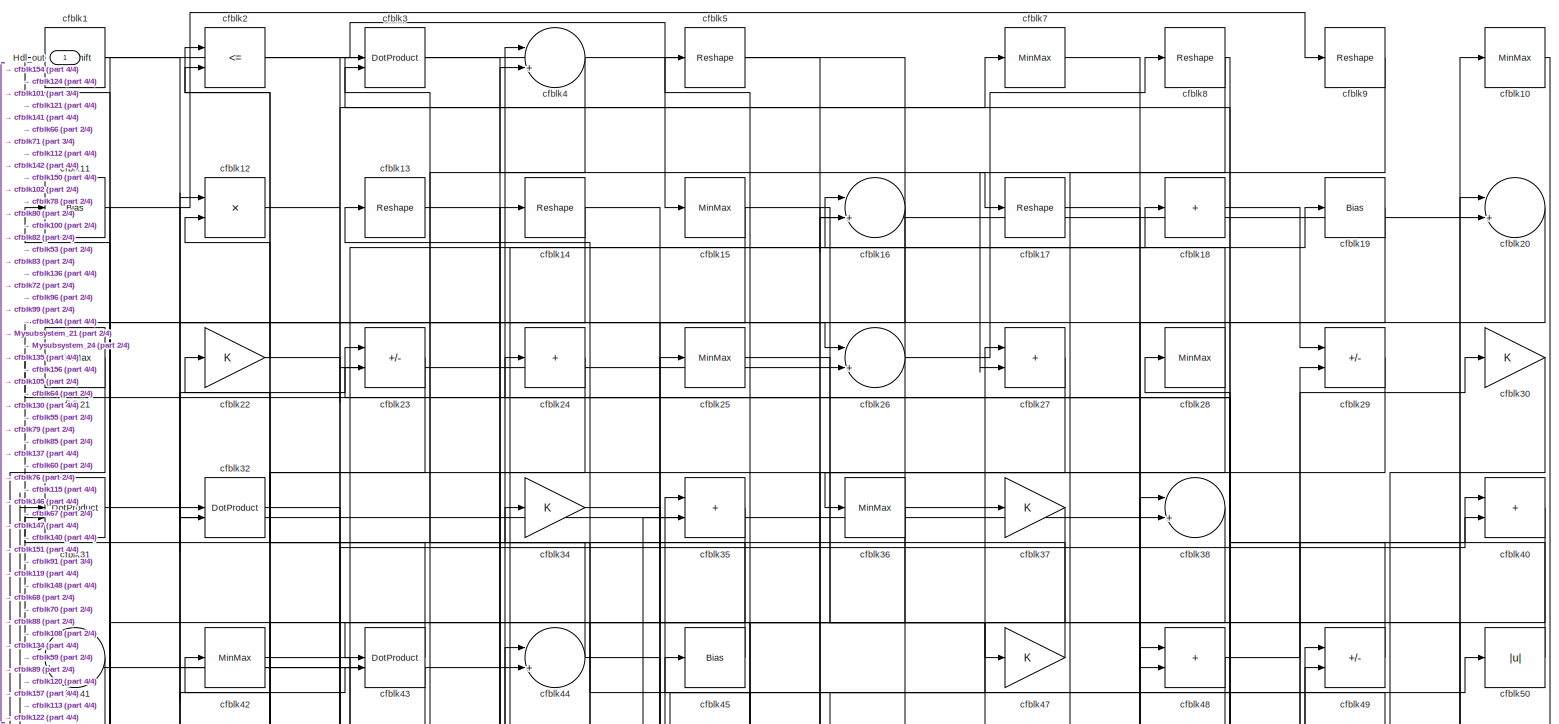
[diagram: root canvas - part 1/4, full width, top band]
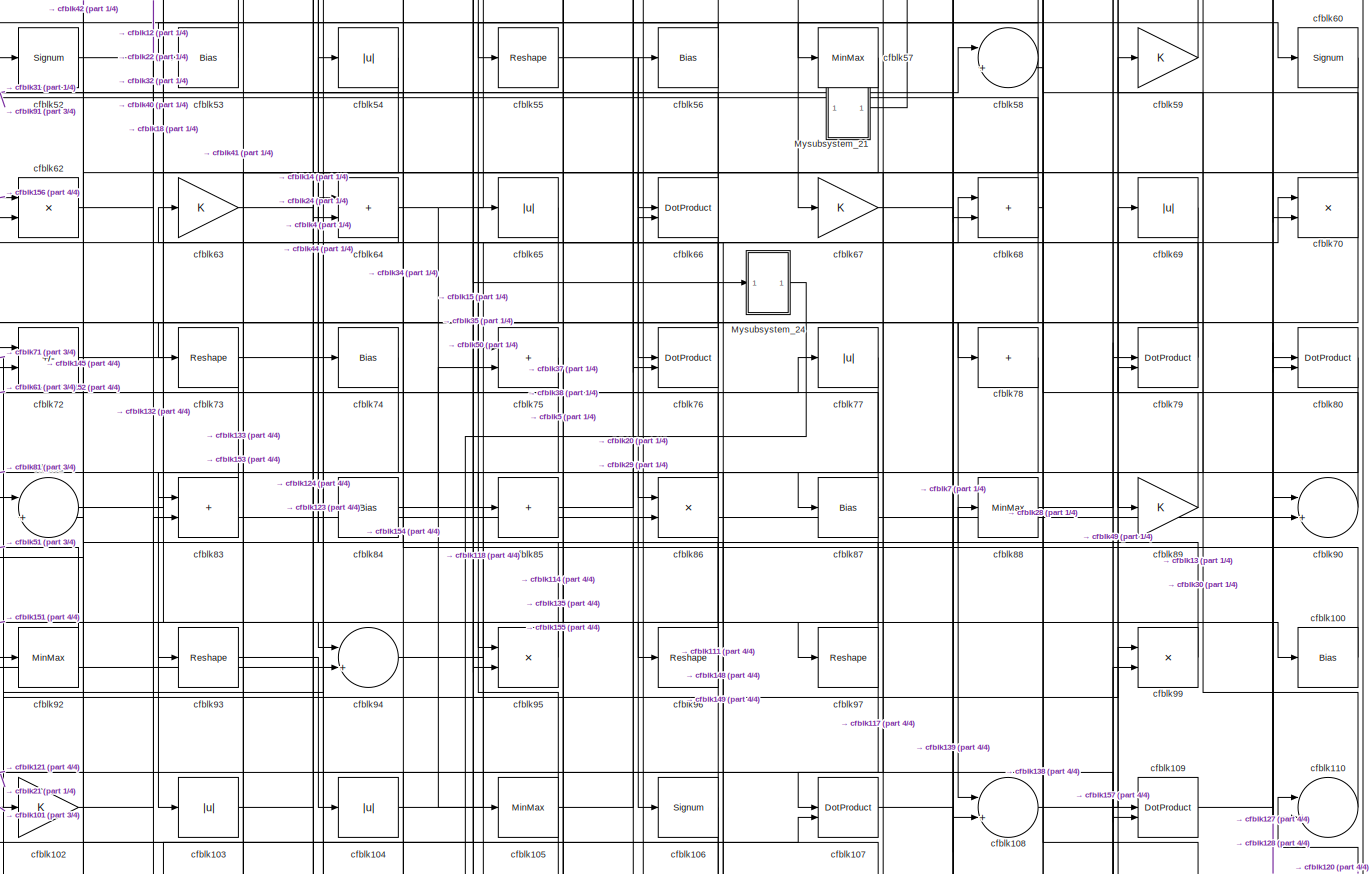
[diagram: root canvas - part 2/4, full width, middle band]
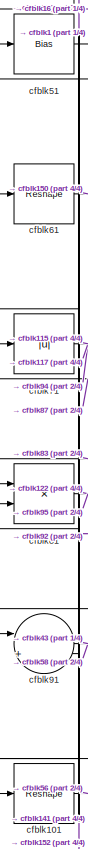
[diagram: root canvas - part 3/4, middle left region]
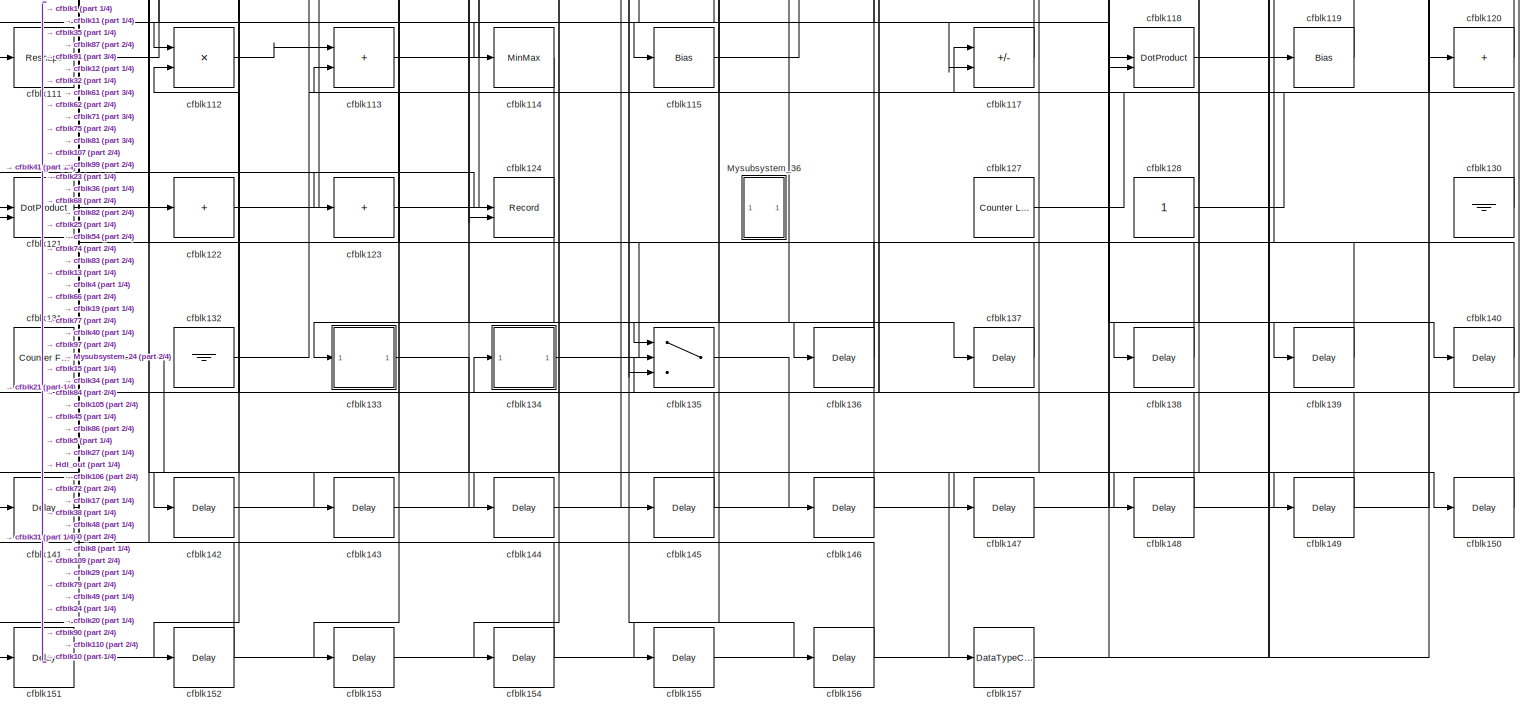
[diagram: root canvas - part 4/4, full width, bottom band]
MODEL slx_01c3ef3bdf71
KIND model
CONFIG AbsTol = auto
CONFIG EnableMultiTasking = off
CONFIG FixedStep = auto
CONFIG MaxStep = auto
CONFIG MinStep = auto
CONFIG RelTol = 1e-3
CONFIG SampleTimeConstraint = Unconstrained
CONFIG SolverName = VariableStepAuto
CONFIG StartTime = 0.0
CONFIG StopTime = 10.0
BLOCK [Outport] Hdl_out
  OutDataTypeStr = uint8
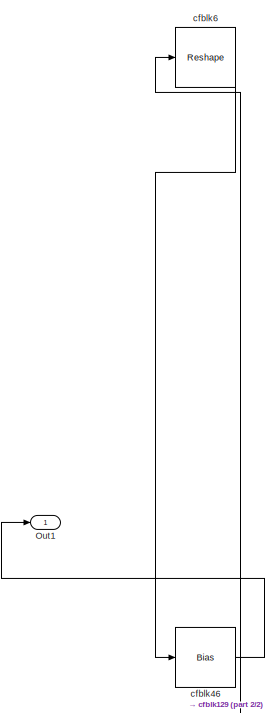
[diagram: Mysubsystem_21 - part 1/2, top left region]
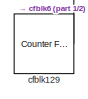
[diagram: Mysubsystem_21 - part 2/2, bottom right region]
BLOCK [SubSystem] Mysubsystem_21
  RTWFcnName = Mysubsystem_21
  RTWFcnNameOpts = User specified
  RTWFileNameOpts = Use function name
  RTWSystemCode = Reusable function
  TreatAsAtomicUnit = on
BLOCK [Outport] Mysubsystem_21/Out1
BLOCK [Reference] Mysubsystem_21/cfblk129  REF=hdlsllib/Sources/Counter
Free-Running
  SourceBlock = hdlsllib/Sources/Counter\nFree-Running
  SourceType = Counter Free-Running
BLOCK [Bias] Mysubsystem_21/cfblk46
  Bias = 0.0
  SaturateOnIntegerOverflow = off
BLOCK [Reshape] Mysubsystem_21/cfblk6
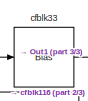
[diagram: Mysubsystem_24 - part 1/3, top left region]
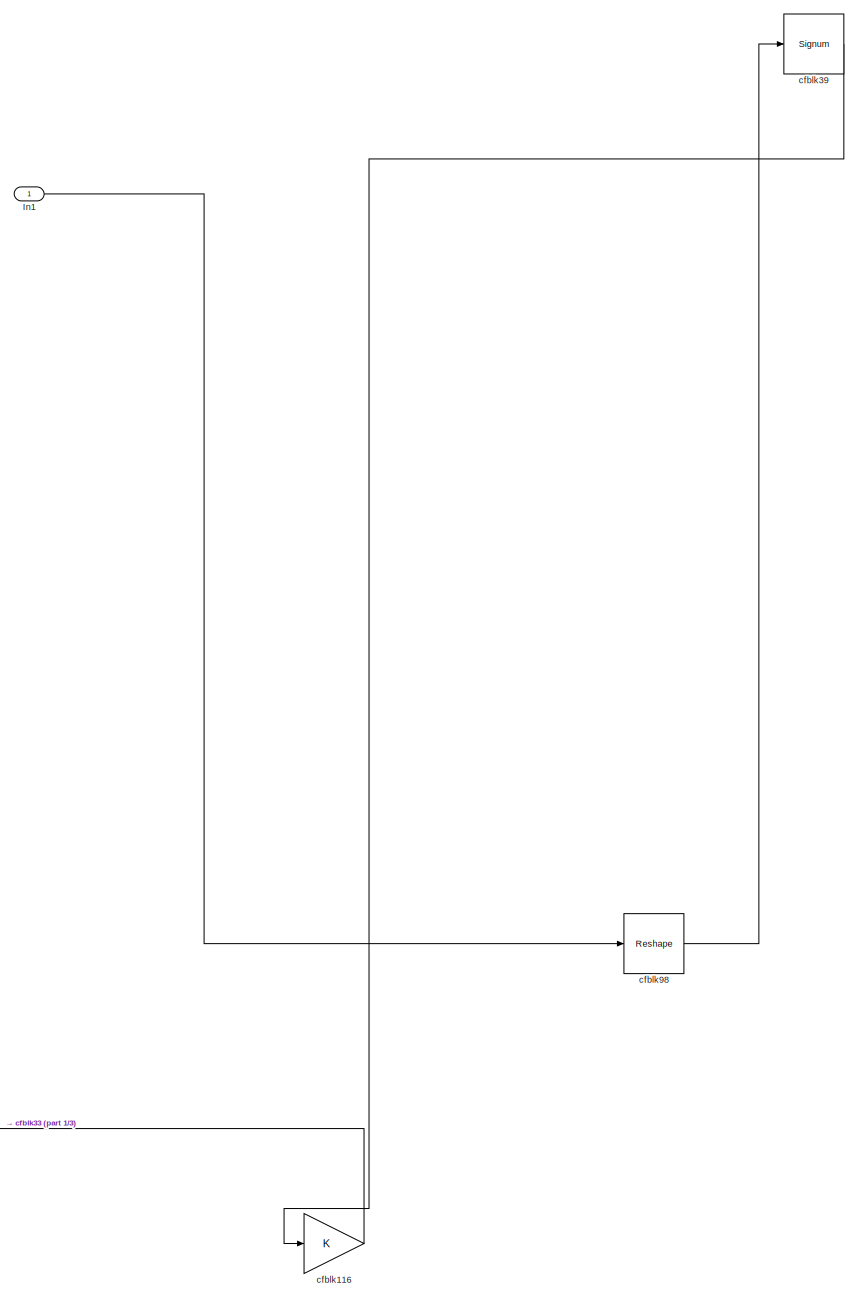
[diagram: Mysubsystem_24 - part 2/3, most of the canvas]
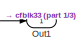
[diagram: Mysubsystem_24 - part 3/3, bottom center region]
BLOCK [SubSystem] Mysubsystem_24
  RTWFcnName = Mysubsystem_24
  RTWFcnNameOpts = User specified
  RTWFileNameOpts = Use function name
  RTWSystemCode = Reusable function
  TreatAsAtomicUnit = on
BLOCK [Inport] Mysubsystem_24/In1
BLOCK [Outport] Mysubsystem_24/Out1
BLOCK [Gain] Mysubsystem_24/cfblk116
BLOCK [Bias] Mysubsystem_24/cfblk33
  Bias = 0.0
  SaturateOnIntegerOverflow = off
BLOCK [Signum] Mysubsystem_24/cfblk39
BLOCK [Reshape] Mysubsystem_24/cfblk98
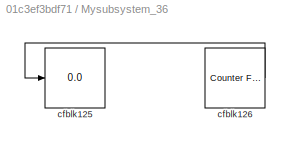
BLOCK [SubSystem] Mysubsystem_36
  RTWFcnName = Mysubsystem_36
  RTWFcnNameOpts = User specified
  RTWFileNameOpts = Use function name
  RTWSystemCode = Reusable function
  TreatAsAtomicUnit = on
BLOCK [Display] Mysubsystem_36/cfblk125
  Decimation = 1
BLOCK [Reference] Mysubsystem_36/cfblk126  REF=hdlsllib/Sources/Counter
Free-Running
  SourceBlock = hdlsllib/Sources/Counter\nFree-Running
  SourceType = Counter Free-Running
BLOCK [Reference] cfblk1  REF=hdlsllib/Logic and Bit
Operations/Bit Shift
  SourceBlock = hdlsllib/Logic and Bit\nOperations/Bit Shift
  SourceType = Bit Shift
BLOCK [MinMax] cfblk10
  OutDataTypeStr = uint8
BLOCK [Bias] cfblk100
  Bias = 0.0
  SaturateOnIntegerOverflow = off
BLOCK [Reshape] cfblk101
BLOCK [Gain] cfblk102
  OutDataTypeStr = uint8
BLOCK [Abs] cfblk103
  OutDataTypeStr = uint8
  SaturateOnIntegerOverflow = off
BLOCK [Abs] cfblk104
  OutDataTypeStr = uint8
  SaturateOnIntegerOverflow = off
BLOCK [MinMax] cfblk105
  OutDataTypeStr = uint8
BLOCK [Signum] cfblk106
BLOCK [DotProduct] cfblk107
  OutDataTypeStr = uint8
BLOCK [Sum] cfblk108
  Inputs = |++
  OutDataTypeStr = uint8
BLOCK [DotProduct] cfblk109
  OutDataTypeStr = uint8
BLOCK [Bias] cfblk11
  Bias = 0.0
  SaturateOnIntegerOverflow = off
BLOCK [Sum] cfblk110
  Inputs = |++
  OutDataTypeStr = uint8
BLOCK [Reshape] cfblk111
BLOCK [Product] cfblk112
  Inputs = */
  OutDataTypeStr = uint8
  RndMeth = Zero
  SaturateOnIntegerOverflow = on
BLOCK [Sum] cfblk113
  IconShape = rectangular
  OutDataTypeStr = uint8
BLOCK [MinMax] cfblk114
  OutDataTypeStr = uint8
BLOCK [Bias] cfblk115
  Bias = 0.0
  SaturateOnIntegerOverflow = off
BLOCK [Sum] cfblk117
  IconShape = rectangular
  Inputs = +-
  OutDataTypeStr = uint8
BLOCK [DotProduct] cfblk118
  OutDataTypeStr = uint8
BLOCK [Bias] cfblk119
  Bias = 0.0
  SaturateOnIntegerOverflow = off
BLOCK [Product] cfblk12
  Inputs = */
  OutDataTypeStr = uint8
  RndMeth = Zero
  SaturateOnIntegerOverflow = on
BLOCK [Sum] cfblk120
  IconShape = rectangular
  Inputs = +
  OutDataTypeStr = uint8
BLOCK [DotProduct] cfblk121
  OutDataTypeStr = uint8
BLOCK [Sum] cfblk122
  IconShape = rectangular
  Inputs = +
  OutDataTypeStr = uint8
BLOCK [Sum] cfblk123
  IconShape = rectangular
  Inputs = +
  OutDataTypeStr = uint8
BLOCK [Record] cfblk124
  CompatibilityTag = XY
  FileSettingsInternal = {"entries":[{"content":{"excelSettings":{"content":{},"type":"Streamout.ExcelSettings"}},"type":"Streamout.FileSettingStorage","uuid":""}],"packageUris":["http:\/\/schema.mathworks.com\/mf0\/streamout_blocks\/R2020a"],"version":"1.0"}
  Layout = [1 1]
  SignalsInternal = {"entries":[{"content":{"signals":[{"content":{"blockPath":[],"dimensions":[1],"domain":"","lineColor":"#a2142f","plots":[1],"port":1,"signalID":50528,"signalName":"cfblk41"},"type":"RecordBlkView.Signal","uuid":""},{"content":{"blockPath":[],"dimensions":[1],"domain":"","lineColor":"#139fff","plots":[1],"port":2,"signalID":50531,"signalName":"cfblk66"},"type":"RecordBlkView.Signal","uuid":""}]},"...<+142ch>
  VisualizationBindings = {"xyplotplugin":{"info":[{"series":[{"bindingParametersList":[{"parameter":"X-Axis","signalID":50528,"signalName":"cfblk41"},{"parameter":"Y-Axis","signalID":50531,"signalName":"cfblk66"}],"seriesID":60734}],"subplotID":1}]}}
  st = -1
BLOCK [Reference] cfblk127  REF=hdlsllib/Sources/Counter
Limited
  SourceBlock = hdlsllib/Sources/Counter\nLimited
  SourceType = Counter Limited
BLOCK [Constant] cfblk128
  OutDataTypeStr = uint8
  SampleTime = -1
BLOCK [Reshape] cfblk13
BLOCK [Ground] cfblk130
BLOCK [Reference] cfblk131  REF=hdlsllib/Sources/Counter
Free-Running
  SourceBlock = hdlsllib/Sources/Counter\nFree-Running
  SourceType = Counter Free-Running
BLOCK [Ground] cfblk132
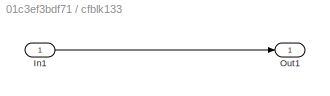
BLOCK [SubSystem] cfblk133
  LibrarySourceBlock = hdlsllib/Ports &\nSubsystems/Subsystem
BLOCK [Inport] cfblk133/In1
BLOCK [Outport] cfblk133/Out1
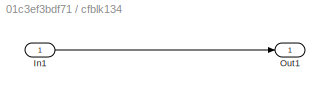
BLOCK [SubSystem] cfblk134
  LibrarySourceBlock = hdlsllib/Ports &\nSubsystems/Subsystem
BLOCK [Inport] cfblk134/In1
BLOCK [Outport] cfblk134/Out1
BLOCK [Switch] cfblk135
  InputSameDT = off
  OutDataTypeStr = uint8
  SaturateOnIntegerOverflow = off
BLOCK [Delay] cfblk136
  InputPortMap = u0
  SampleTime = 1
BLOCK [Delay] cfblk137
  InputPortMap = u0
  SampleTime = 1
BLOCK [Delay] cfblk138
  InputPortMap = u0
  SampleTime = 1
BLOCK [Delay] cfblk139
  InputPortMap = u0
  SampleTime = 1
BLOCK [Reshape] cfblk14
BLOCK [Delay] cfblk140
  InputPortMap = u0
  SampleTime = 1
BLOCK [Delay] cfblk141
  InputPortMap = u0
  SampleTime = 1
BLOCK [Delay] cfblk142
  InputPortMap = u0
  SampleTime = 1
BLOCK [Delay] cfblk143
  InputPortMap = u0
  SampleTime = 1
BLOCK [Delay] cfblk144
  InputPortMap = u0
  SampleTime = 1
BLOCK [Delay] cfblk145
  InputPortMap = u0
  SampleTime = 1
BLOCK [Delay] cfblk146
  InputPortMap = u0
  SampleTime = 1
BLOCK [Delay] cfblk147
  InputPortMap = u0
  SampleTime = 1
BLOCK [Delay] cfblk148
  InputPortMap = u0
  SampleTime = 1
BLOCK [Delay] cfblk149
  InputPortMap = u0
  SampleTime = 1
BLOCK [MinMax] cfblk15
  OutDataTypeStr = uint8
BLOCK [Delay] cfblk150
  InputPortMap = u0
  SampleTime = 1
BLOCK [Delay] cfblk151
  InputPortMap = u0
  SampleTime = 1
BLOCK [Delay] cfblk152
  InputPortMap = u0
  SampleTime = 1
BLOCK [Delay] cfblk153
  InputPortMap = u0
  SampleTime = 1
BLOCK [Delay] cfblk154
  InputPortMap = u0
  SampleTime = 1
BLOCK [Delay] cfblk155
  InputPortMap = u0
  SampleTime = 1
BLOCK [Delay] cfblk156
  InputPortMap = u0
  SampleTime = 1
BLOCK [DataTypeConversion] cfblk157
  OutDataTypeStr = uint8
  RndMeth = Floor
  SaturateOnIntegerOverflow = off
BLOCK [Sum] cfblk16
  Inputs = |++
  OutDataTypeStr = uint8
BLOCK [Reshape] cfblk17
BLOCK [Sum] cfblk18
  IconShape = rectangular
  Inputs = +
  OutDataTypeStr = uint8
BLOCK [Bias] cfblk19
  Bias = 0.0
  SaturateOnIntegerOverflow = off
BLOCK [RelationalOperator] cfblk2
  InputSameDT = off
  Operator = <=
  OutDataTypeStr = boolean
BLOCK [Sum] cfblk20
  Inputs = |++
  OutDataTypeStr = uint8
BLOCK [MinMax] cfblk21
  OutDataTypeStr = uint8
BLOCK [Gain] cfblk22
  OutDataTypeStr = uint8
BLOCK [Sum] cfblk23
  IconShape = rectangular
  Inputs = +-
  OutDataTypeStr = uint8
BLOCK [Sum] cfblk24
  IconShape = rectangular
  Inputs = +
  OutDataTypeStr = uint8
BLOCK [MinMax] cfblk25
  OutDataTypeStr = uint8
BLOCK [Sum] cfblk26
  Inputs = |++
  OutDataTypeStr = uint8
BLOCK [Sum] cfblk27
  IconShape = rectangular
  OutDataTypeStr = uint8
BLOCK [MinMax] cfblk28
  OutDataTypeStr = uint8
BLOCK [Sum] cfblk29
  IconShape = rectangular
  Inputs = +-
  OutDataTypeStr = uint8
BLOCK [DotProduct] cfblk3
  OutDataTypeStr = uint8
BLOCK [Gain] cfblk30
  OutDataTypeStr = uint8
BLOCK [DotProduct] cfblk31
  OutDataTypeStr = uint8
BLOCK [DotProduct] cfblk32
  OutDataTypeStr = uint8
BLOCK [Gain] cfblk34
  OutDataTypeStr = uint8
BLOCK [Sum] cfblk35
  IconShape = rectangular
  OutDataTypeStr = uint8
BLOCK [MinMax] cfblk36
  OutDataTypeStr = uint8
BLOCK [Gain] cfblk37
  OutDataTypeStr = uint8
BLOCK [Sum] cfblk38
  Inputs = |++
  OutDataTypeStr = uint8
BLOCK [Sum] cfblk4
  Inputs = |++
  OutDataTypeStr = uint8
BLOCK [Sum] cfblk40
  IconShape = rectangular
  OutDataTypeStr = uint8
BLOCK [Sum] cfblk41
  Inputs = |++
  OutDataTypeStr = uint8
BLOCK [MinMax] cfblk42
  OutDataTypeStr = uint8
BLOCK [DotProduct] cfblk43
  OutDataTypeStr = uint8
BLOCK [Sum] cfblk44
  Inputs = |++
  OutDataTypeStr = uint8
BLOCK [Bias] cfblk45
  Bias = 0.0
  SaturateOnIntegerOverflow = off
BLOCK [Gain] cfblk47
  OutDataTypeStr = uint8
BLOCK [Sum] cfblk48
  IconShape = rectangular
  OutDataTypeStr = uint8
BLOCK [Sum] cfblk49
  IconShape = rectangular
  Inputs = +-
  OutDataTypeStr = uint8
BLOCK [Reshape] cfblk5
BLOCK [Abs] cfblk50
  OutDataTypeStr = uint8
  SaturateOnIntegerOverflow = off
BLOCK [Bias] cfblk51
  Bias = 0.0
  SaturateOnIntegerOverflow = off
BLOCK [Signum] cfblk52
BLOCK [Bias] cfblk53
  Bias = 0.0
  SaturateOnIntegerOverflow = off
BLOCK [Abs] cfblk54
  OutDataTypeStr = uint8
  SaturateOnIntegerOverflow = off
BLOCK [Reshape] cfblk55
BLOCK [Bias] cfblk56
  Bias = 0.0
  SaturateOnIntegerOverflow = off
BLOCK [MinMax] cfblk57
  OutDataTypeStr = uint8
BLOCK [Sum] cfblk58
  Inputs = |++
  OutDataTypeStr = uint8
BLOCK [Gain] cfblk59
  OutDataTypeStr = uint8
BLOCK [Signum] cfblk60
BLOCK [Reshape] cfblk61
BLOCK [Product] cfblk62
  Inputs = */
  OutDataTypeStr = uint8
  RndMeth = Zero
  SaturateOnIntegerOverflow = on
BLOCK [Gain] cfblk63
  OutDataTypeStr = uint8
BLOCK [Sum] cfblk64
  IconShape = rectangular
  OutDataTypeStr = uint8
BLOCK [Abs] cfblk65
  OutDataTypeStr = uint8
  SaturateOnIntegerOverflow = off
BLOCK [DotProduct] cfblk66
  OutDataTypeStr = uint8
BLOCK [Gain] cfblk67
  OutDataTypeStr = uint8
BLOCK [Sum] cfblk68
  IconShape = rectangular
  OutDataTypeStr = uint8
BLOCK [Abs] cfblk69
  OutDataTypeStr = uint8
  SaturateOnIntegerOverflow = off
BLOCK [MinMax] cfblk7
  OutDataTypeStr = uint8
BLOCK [Product] cfblk70
  Inputs = */
  OutDataTypeStr = uint8
  RndMeth = Zero
  SaturateOnIntegerOverflow = on
BLOCK [Abs] cfblk71
  OutDataTypeStr = uint8
  SaturateOnIntegerOverflow = off
BLOCK [Sum] cfblk72
  IconShape = rectangular
  Inputs = +-
  OutDataTypeStr = uint8
BLOCK [Reshape] cfblk73
BLOCK [Bias] cfblk74
  Bias = 0.0
  SaturateOnIntegerOverflow = off
BLOCK [Sum] cfblk75
  IconShape = rectangular
  OutDataTypeStr = uint8
BLOCK [DotProduct] cfblk76
  OutDataTypeStr = uint8
BLOCK [Abs] cfblk77
  OutDataTypeStr = uint8
  SaturateOnIntegerOverflow = off
BLOCK [Sum] cfblk78
  IconShape = rectangular
  Inputs = +
  OutDataTypeStr = uint8
BLOCK [DotProduct] cfblk79
  OutDataTypeStr = uint8
BLOCK [Reshape] cfblk8
BLOCK [DotProduct] cfblk80
  OutDataTypeStr = uint8
BLOCK [Product] cfblk81
  Inputs = */
  OutDataTypeStr = uint8
  RndMeth = Zero
  SaturateOnIntegerOverflow = on
BLOCK [Sum] cfblk82
  Inputs = |++
  OutDataTypeStr = uint8
BLOCK [Sum] cfblk83
  IconShape = rectangular
  OutDataTypeStr = uint8
BLOCK [Bias] cfblk84
  Bias = 0.0
  SaturateOnIntegerOverflow = off
BLOCK [Sum] cfblk85
  IconShape = rectangular
  Inputs = +
  OutDataTypeStr = uint8
BLOCK [Product] cfblk86
  Inputs = */
  OutDataTypeStr = uint8
  RndMeth = Zero
  SaturateOnIntegerOverflow = on
BLOCK [Bias] cfblk87
  Bias = 0.0
  SaturateOnIntegerOverflow = off
BLOCK [MinMax] cfblk88
  OutDataTypeStr = uint8
BLOCK [Gain] cfblk89
  OutDataTypeStr = uint8
BLOCK [Reshape] cfblk9
BLOCK [Sum] cfblk90
  Inputs = |++
  OutDataTypeStr = uint8
BLOCK [Sum] cfblk91
  Inputs = |++
  OutDataTypeStr = uint8
BLOCK [MinMax] cfblk92
  OutDataTypeStr = uint8
BLOCK [Reshape] cfblk93
BLOCK [Sum] cfblk94
  Inputs = |++
  OutDataTypeStr = uint8
BLOCK [Product] cfblk95
  Inputs = */
  OutDataTypeStr = uint8
  RndMeth = Zero
  SaturateOnIntegerOverflow = on
BLOCK [Reshape] cfblk96
BLOCK [Reshape] cfblk97
BLOCK [Product] cfblk99
  Inputs = */
  OutDataTypeStr = uint8
  RndMeth = Zero
  SaturateOnIntegerOverflow = on
LINE Mysubsystem_21/cfblk129:1 -> Mysubsystem_21/cfblk6:1
LINE Mysubsystem_21/cfblk46:1 -> Mysubsystem_21/Out1:1
LINE Mysubsystem_21/cfblk6:1 -> Mysubsystem_21/cfblk46:1
LINE Mysubsystem_21:1 -> cfblk35:2
LINE Mysubsystem_24/In1:1 -> Mysubsystem_24/cfblk98:1
LINE Mysubsystem_24/cfblk116:1 -> Mysubsystem_24/cfblk33:1
LINE Mysubsystem_24/cfblk33:1 -> Mysubsystem_24/Out1:1
LINE Mysubsystem_24/cfblk39:1 -> Mysubsystem_24/cfblk116:1
LINE Mysubsystem_24/cfblk98:1 -> Mysubsystem_24/cfblk39:1
LINE Mysubsystem_24:1 -> cfblk145:1
LINE Mysubsystem_36/cfblk126:1 -> Mysubsystem_36/cfblk125:1
LINE cfblk100:1 -> cfblk34:1
LINE cfblk101:1 -> cfblk56:1
LINE cfblk102:1 -> cfblk40:1
LINE cfblk103:1 -> cfblk74:1
LINE cfblk104:1 -> cfblk70:1
NET cfblk105:1 -> cfblk114:1, cfblk35:1, cfblk88:1
LINE cfblk106:1 -> cfblk111:1
LINE cfblk107:1 -> cfblk139:1
LINE cfblk108:1 -> cfblk49:2
LINE cfblk109:1 -> cfblk80:1
LINE cfblk10:1 -> cfblk135:2
NET cfblk110:1 -> cfblk59:1, cfblk79:2
NET cfblk111:1 -> cfblk107:2, cfblk99:1
LINE cfblk112:1 -> cfblk113:1
LINE cfblk113:1 -> cfblk19:1
LINE cfblk114:1 -> cfblk143:1
LINE cfblk115:1 -> cfblk27:1
LINE cfblk117:1 -> cfblk72:2
LINE cfblk118:1 -> cfblk119:1
LINE cfblk119:1 -> cfblk24:1
NET cfblk11:1 -> cfblk121:1, cfblk26:1, cfblk9:1
LINE cfblk120:1 -> cfblk110:1
NET cfblk121:1 -> cfblk12:1, cfblk75:1
LINE cfblk122:1 -> cfblk25:1
LINE cfblk123:1 -> cfblk77:1
LINE cfblk127:1 -> cfblk90:1
LINE cfblk128:1 -> cfblk110:2
NET cfblk12:1 -> cfblk68:2, cfblk7:1
LINE cfblk130:1 -> cfblk45:1
LINE cfblk131:1 -> cfblk157:1
NET cfblk132:1 -> cfblk117:1, cfblk90:2
LINE cfblk133/In1:1 -> cfblk133/Out1:1
LINE cfblk133:1 -> cfblk149:1
LINE cfblk134/In1:1 -> cfblk134/Out1:1
LINE cfblk134:1 -> cfblk49:1
LINE cfblk135:1 -> cfblk146:1
LINE cfblk136:1 -> cfblk32:1
LINE cfblk137:1 -> cfblk1:1
LINE cfblk138:1 -> cfblk112:2
LINE cfblk139:1 -> cfblk83:2
LINE cfblk13:1 -> cfblk136:1
LINE cfblk140:1 -> cfblk113:2
LINE cfblk141:1 -> cfblk81:2
LINE cfblk142:1 -> cfblk4:2
LINE cfblk143:1 -> cfblk118:1
LINE cfblk144:1 -> cfblk48:1
LINE cfblk145:1 -> cfblk82:1
NET cfblk146:1 -> Hdl_out:1, cfblk29:2
LINE cfblk147:1 -> cfblk20:1
LINE cfblk148:1 -> cfblk66:2
LINE cfblk149:1 -> cfblk86:2
NET cfblk14:1 -> cfblk41:1, cfblk47:1
LINE cfblk150:1 -> cfblk12:2
LINE cfblk151:1 -> cfblk38:1
LINE cfblk152:1 -> cfblk91:2
LINE cfblk153:1 -> cfblk99:2
LINE cfblk154:1 -> cfblk31:1
LINE cfblk155:1 -> cfblk79:1
LINE cfblk156:1 -> cfblk62:1
NET cfblk157:1 -> cfblk109:1, cfblk10:1
NET cfblk15:1 -> cfblk135:3, cfblk16:2, cfblk67:1
LINE cfblk16:1 -> cfblk101:1
LINE cfblk17:1 -> cfblk140:1
LINE cfblk18:1 -> cfblk29:1
LINE cfblk19:1 -> cfblk32:2
NET cfblk1:1 -> cfblk44:2, cfblk71:1
LINE cfblk20:1 -> cfblk48:2
LINE cfblk21:1 -> cfblk134:1
NET cfblk22:1 -> cfblk2:2, cfblk80:2
LINE cfblk23:1 -> cfblk142:1
LINE cfblk24:1 -> cfblk64:2
LINE cfblk25:1 -> cfblk120:1
LINE cfblk26:1 -> cfblk8:1
LINE cfblk27:1 -> cfblk36:1
NET cfblk28:1 -> cfblk16:1, cfblk72:1
LINE cfblk29:1 -> cfblk76:2
NET cfblk2:1 -> cfblk15:1, cfblk26:2
LINE cfblk30:1 -> cfblk89:1
NET cfblk31:1 -> cfblk23:1, cfblk38:2
LINE cfblk32:1 -> cfblk78:1
LINE cfblk34:1 -> cfblk156:1
LINE cfblk35:1 -> cfblk141:1
NET cfblk36:1 -> cfblk112:1, cfblk37:1
LINE cfblk37:1 -> cfblk55:1
LINE cfblk38:1 -> cfblk85:1
LINE cfblk3:1 -> cfblk17:1
LINE cfblk40:1 -> cfblk144:1
LINE cfblk41:1 -> cfblk124:1
LINE cfblk42:1 -> cfblk100:1
LINE cfblk43:1 -> cfblk2:1
NET cfblk44:1 -> Mysubsystem_24:1, cfblk22:1
NET cfblk45:1 -> cfblk11:1, cfblk43:1
LINE cfblk47:1 -> cfblk3:1
NET cfblk48:1 -> cfblk40:2, cfblk91:1
LINE cfblk49:1 -> cfblk23:2
LINE cfblk4:1 -> cfblk83:1
LINE cfblk50:1 -> cfblk3:2
LINE cfblk51:1 -> cfblk94:1
LINE cfblk52:1 -> cfblk87:1
LINE cfblk53:1 -> cfblk41:2
LINE cfblk54:1 -> cfblk133:1
LINE cfblk55:1 -> cfblk76:1
LINE cfblk56:1 -> cfblk53:1
LINE cfblk57:1 -> cfblk106:1
NET cfblk58:1 -> cfblk57:1, cfblk93:1
LINE cfblk59:1 -> cfblk13:1
NET cfblk5:1 -> cfblk137:1, cfblk60:1
NET cfblk60:1 -> cfblk107:1, cfblk138:1, cfblk82:2
LINE cfblk61:1 -> cfblk150:1
LINE cfblk62:1 -> cfblk66:1
LINE cfblk63:1 -> cfblk84:1
NET cfblk64:1 -> cfblk105:1, cfblk50:1, cfblk62:2
LINE cfblk65:1 -> cfblk92:1
NET cfblk66:1 -> cfblk124:2, cfblk31:2
LINE cfblk67:1 -> cfblk108:2
NET cfblk68:1 -> cfblk152:1, cfblk28:1, cfblk52:1
LINE cfblk69:1 -> cfblk108:1
NET cfblk70:1 -> cfblk102:1, cfblk21:1
NET cfblk71:1 -> cfblk115:1, cfblk117:2, cfblk94:2
LINE cfblk72:1 -> cfblk14:1
NET cfblk73:1 -> cfblk103:1, cfblk109:2
LINE cfblk74:1 -> cfblk123:1
LINE cfblk75:1 -> cfblk153:1
LINE cfblk76:1 -> cfblk63:1
LINE cfblk77:1 -> cfblk135:1
NET cfblk78:1 -> cfblk95:1, cfblk96:1
NET cfblk79:1 -> cfblk5:1, cfblk73:1
LINE cfblk7:1 -> cfblk70:2
LINE cfblk80:1 -> cfblk86:1
NET cfblk81:1 -> cfblk122:1, cfblk95:2
LINE cfblk82:1 -> cfblk18:1
LINE cfblk83:1 -> cfblk81:1
NET cfblk84:1 -> cfblk118:2, cfblk68:1, cfblk75:2
LINE cfblk85:1 -> cfblk20:2
NET cfblk86:1 -> cfblk155:1, cfblk65:1
NET cfblk87:1 -> cfblk151:1, cfblk61:1
LINE cfblk88:1 -> cfblk30:1
LINE cfblk89:1 -> cfblk69:1
NET cfblk8:1 -> cfblk147:1, cfblk148:1
LINE cfblk90:1 -> cfblk58:2
NET cfblk91:1 -> cfblk43:2, cfblk58:1
LINE cfblk92:1 -> cfblk51:1
LINE cfblk93:1 -> cfblk104:1
LINE cfblk94:1 -> cfblk97:1
LINE cfblk95:1 -> cfblk64:1
LINE cfblk96:1 -> cfblk4:1
NET cfblk97:1 -> cfblk121:2, cfblk154:1, cfblk54:1
NET cfblk99:1 -> cfblk42:1, cfblk44:1
LINE cfblk9:1 -> cfblk27:2
note: NET lines group one-source signal fan-out (src -> all destinations, sorted); 1:1 wires keep LINE
